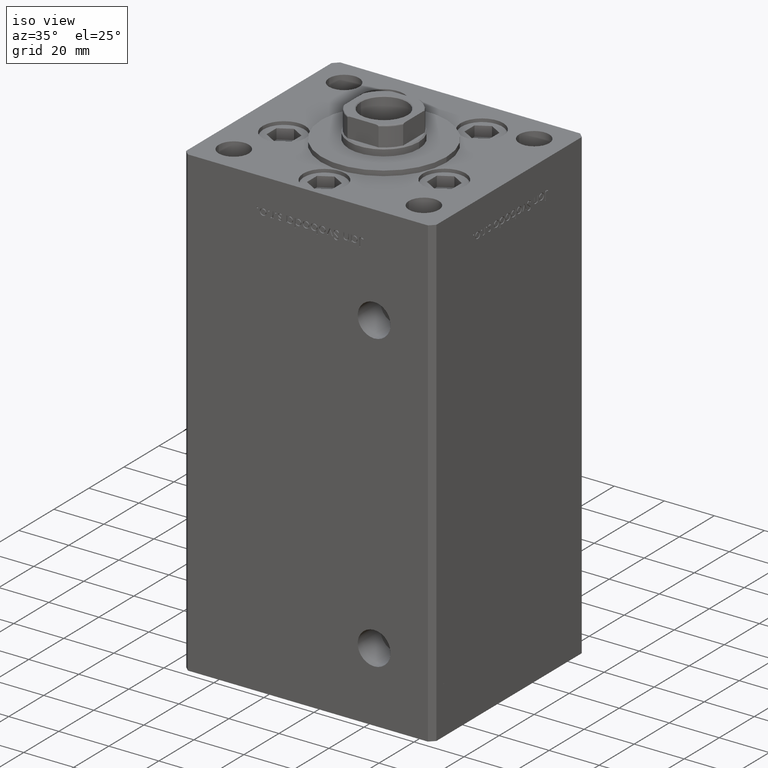
[diagram: clean part render]
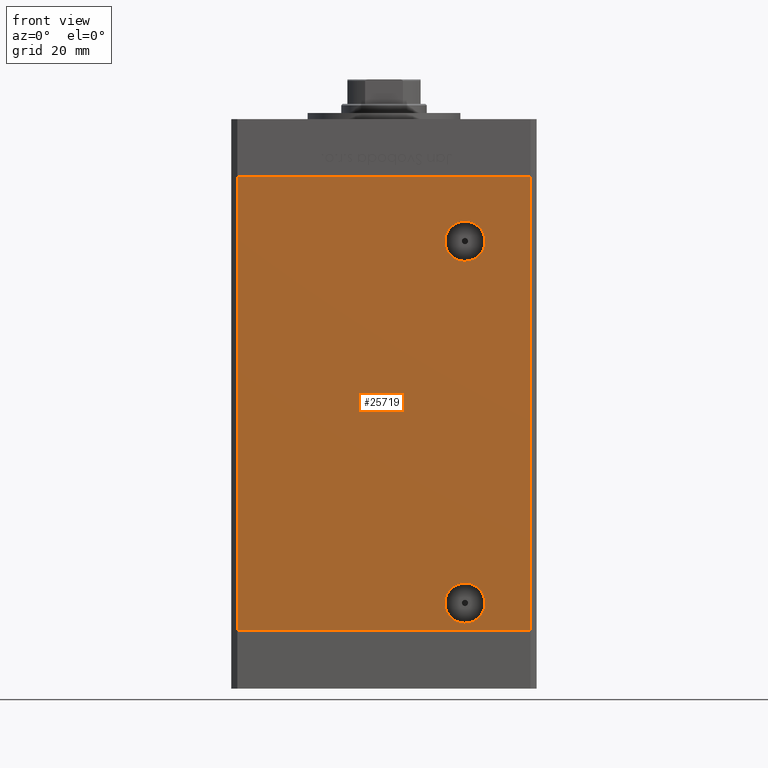
[diagram: tour spotlight — one face highlighted and labeled with its STEP entity id]
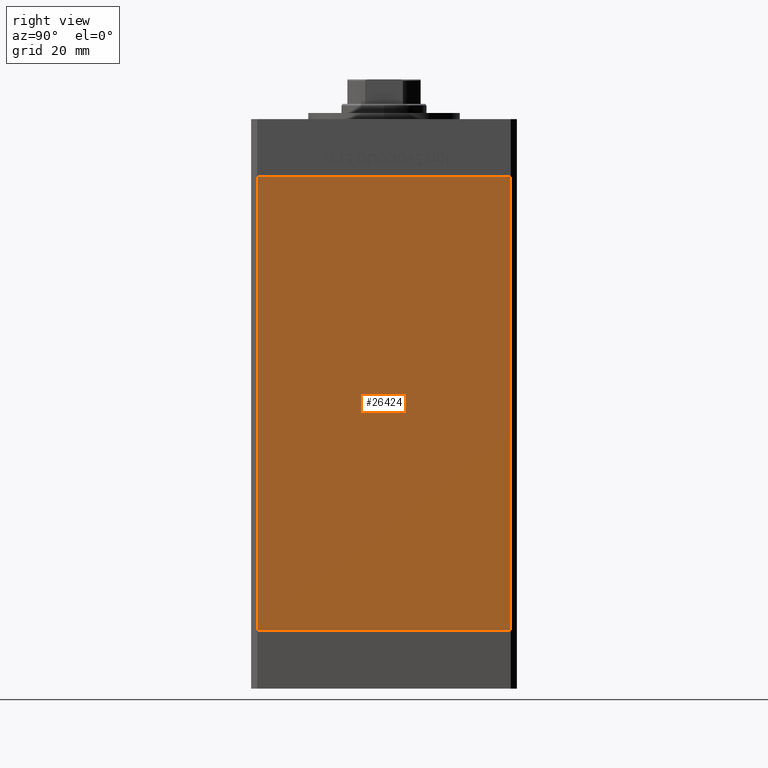
[diagram: tour spotlight — one face highlighted and labeled with its STEP entity id]
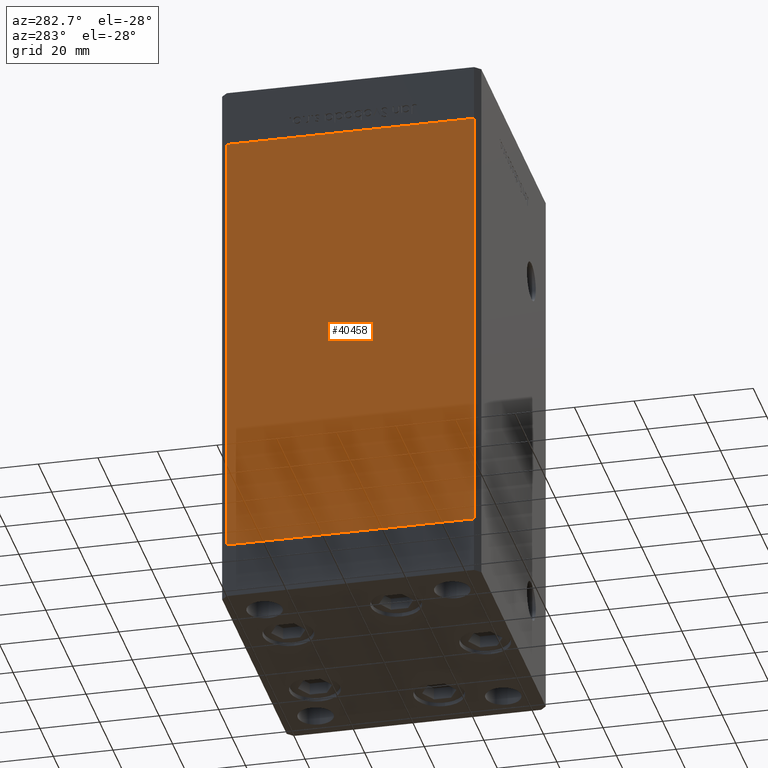
[diagram: tour spotlight — one face highlighted and labeled with its STEP entity id]
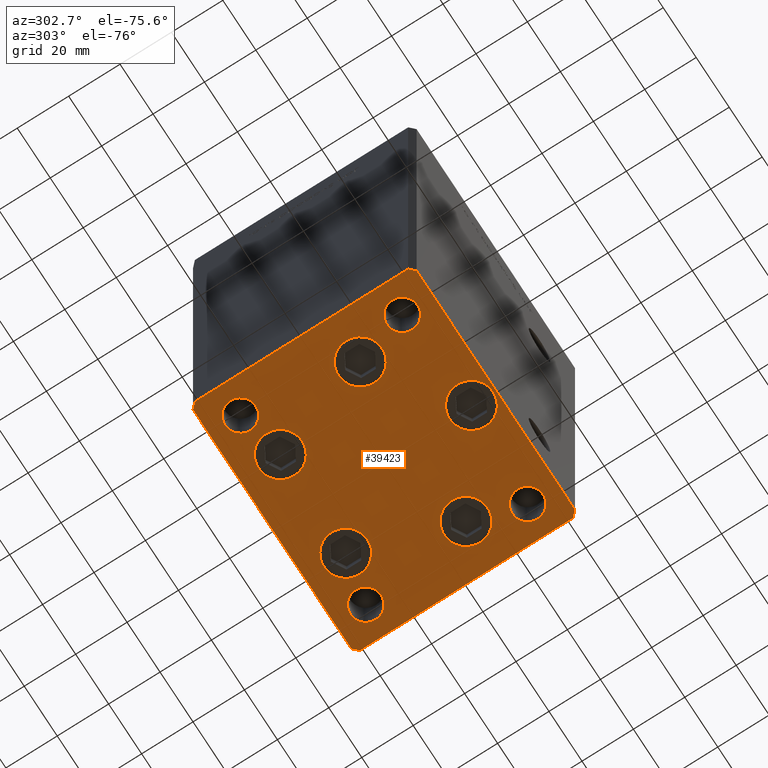
[diagram: tour spotlight — one face highlighted and labeled with its STEP entity id]
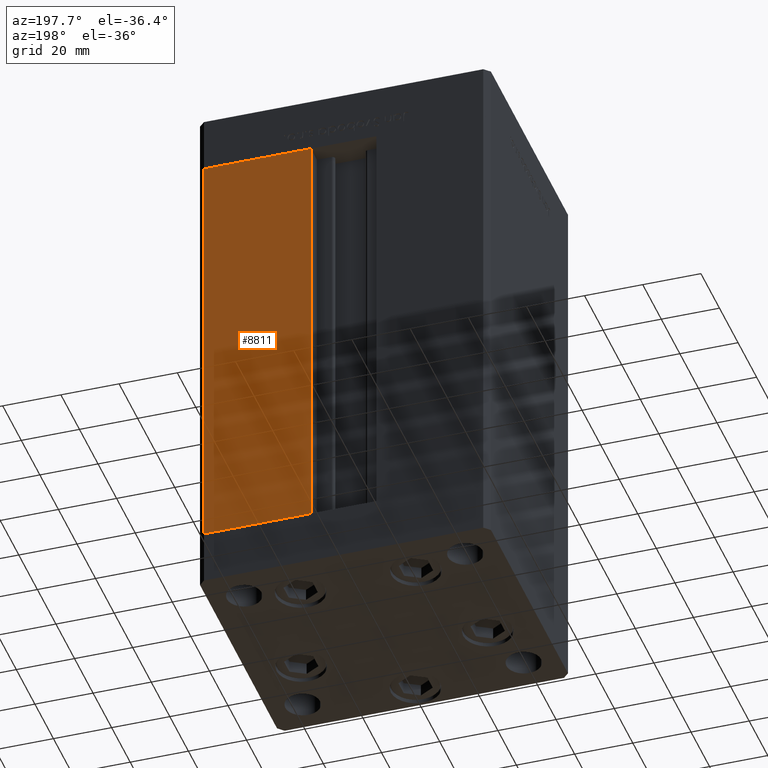
[diagram: tour spotlight — one face highlighted and labeled with its STEP entity id]
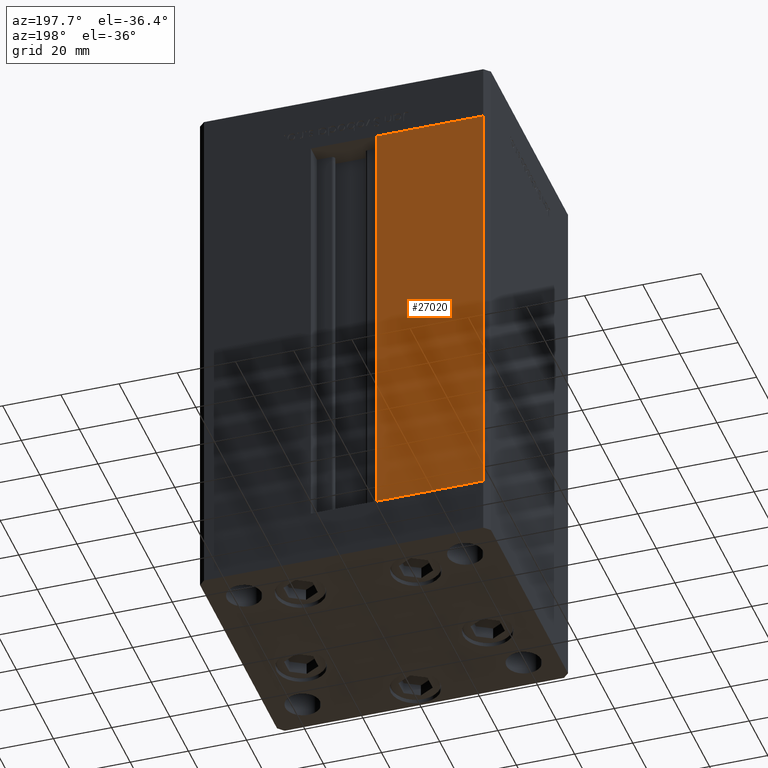
[diagram: tour spotlight — one face highlighted and labeled with its STEP entity id]
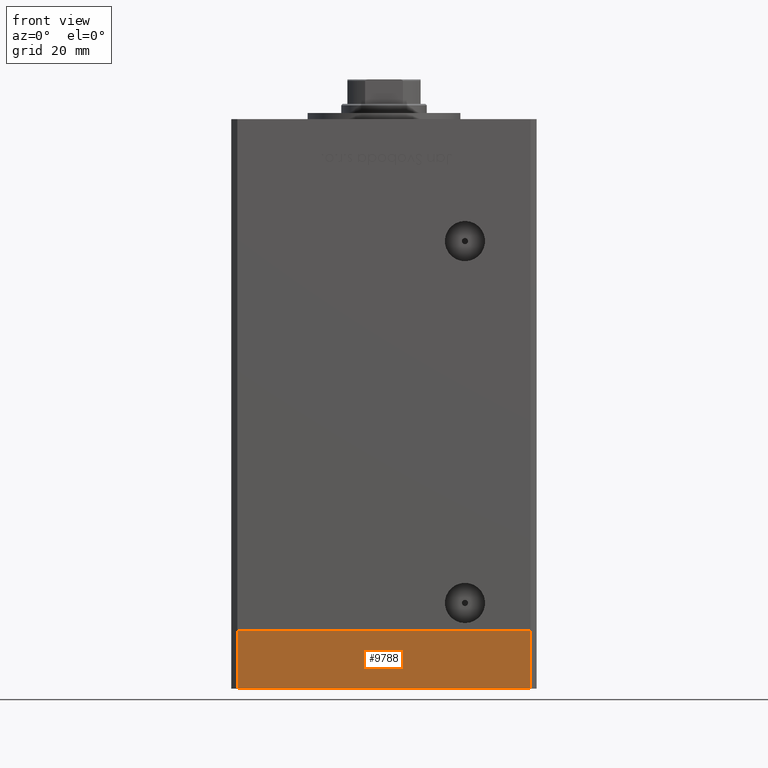
[diagram: tour spotlight — one face highlighted and labeled with its STEP entity id]
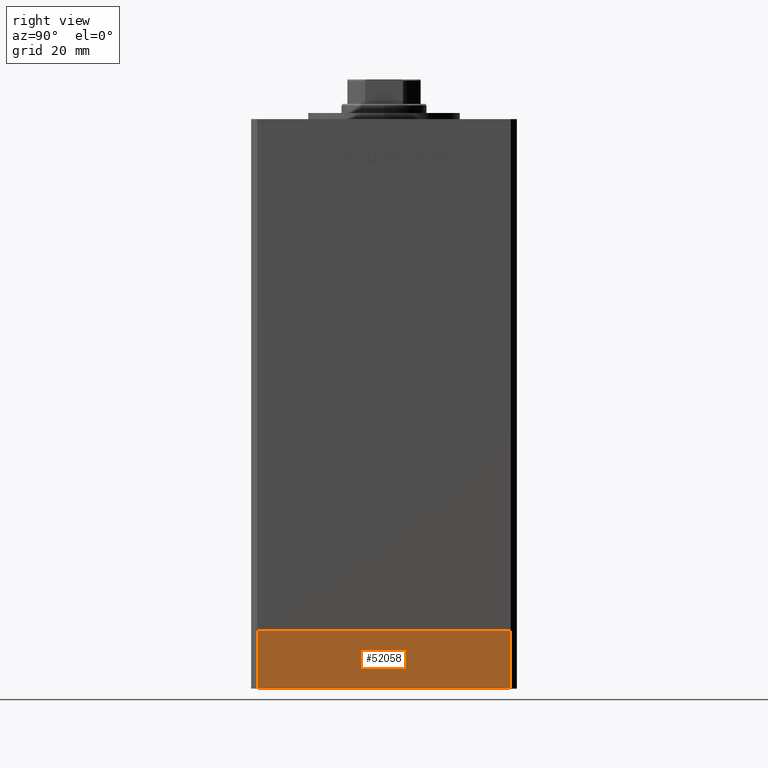
[diagram: tour spotlight — one face highlighted and labeled with its STEP entity id]
A machine part: a face-by-face anatomy tour. The part has 1185 B-rep faces; the first image is the clean iso view, then the 8 largest visible faces are spotlighted one at a time (largest first), each with its STEP entity span.

Face 1 — front view, entity #25719. In plain terms, the highlighted planar face has unit normal (0, 1, 0).
Definition (entity closure, byte-faithful):
#441 = EDGE_CURVE ( 'NONE', #3525, #4405, #39963, .T. ) ;
#507 = CARTESIAN_POINT ( 'NONE',  ( 26.49999999999997513, -43.50000000000000000, 127.5000000000000000 ) ) ;
#566 = VERTEX_POINT ( 'NONE', #28874 ) ;
#873 = PLANE ( 'NONE',  #25583 ) ;
#1144 = CARTESIAN_POINT ( 'NONE',  ( 26.49999999999998934, -43.50000000000000000, 15.58000000000000362 ) ) ;
#3329 = EDGE_CURVE ( 'NONE', #8546, #22762, #11626, .T. ) ;
#3525 = VERTEX_POINT ( 'NONE', #23102 ) ;
#4049 = FACE_BOUND ( 'NONE', #42426, .T. ) ;
#4232 = CARTESIAN_POINT ( 'NONE',  ( -47.99999999999998579, -43.50000000000000000, 148.5000000000000000 ) ) ;
#4405 = VERTEX_POINT ( 'NONE', #18109 ) ;
#4934 = EDGE_CURVE ( 'NONE', #566, #4405, #50350, .T. ) ;
#5079 = FACE_BOUND ( 'NONE', #31125, .T. ) ;
#5959 = EDGE_CURVE ( 'NONE', #37510, #3525, #46673, .T. ) ;
#7356 = DIRECTION ( 'NONE',  ( 0.000000000000000000, -1.000000000000000000, 0.000000000000000000 ) ) ;
#8546 = VERTEX_POINT ( 'NONE', #30614 ) ;
#9357 = CIRCLE ( 'NONE', #27066, 6.579999999999988525 ) ;
#9588 = LINE ( 'NONE', #9847, #23851 ) ;
#9847 = CARTESIAN_POINT ( 'NONE',  ( -47.99999999999998579, -43.50000000000000000, 148.5000000000000000 ) ) ;
#10025 = VERTEX_POINT ( 'NONE', #35699 ) ;
#11626 = CIRCLE ( 'NONE', #31043, 6.579999999999994742 ) ;
#11669 = VECTOR ( 'NONE', #26339, 1000.000000000000000 ) ;
#12106 = EDGE_LOOP ( 'NONE', ( #40223, #30153, #46332, #20754 ) ) ;
#12555 = EDGE_CURVE ( 'NONE', #15434, #10025, #9357, .T. ) ;
#12891 = DIRECTION ( 'NONE',  ( 0.000000000000000000, 0.000000000000000000, -1.000000000000000000 ) ) ;
#14107 = EDGE_CURVE ( 'NONE', #37510, #566, #9588, .T. ) ;
#15434 = VERTEX_POINT ( 'NONE', #44928 ) ;
#16184 = DIRECTION ( 'NONE',  ( 0.000000000000000000, 1.000000000000000000, 0.000000000000000000 ) ) ;
#18109 = CARTESIAN_POINT ( 'NONE',  ( 47.99999999999998579, -43.50000000000000000, 0.000000000000000000 ) ) ;
#18183 = DIRECTION ( 'NONE',  ( -0.000000000000000000, -0.000000000000000000, -1.000000000000000000 ) ) ;
#18519 = ORIENTED_EDGE ( 'NONE', *, *, #12555, .T. ) ;
#19383 = DIRECTION ( 'NONE',  ( 1.000000000000000000, 0.000000000000000000, 0.000000000000000000 ) ) ;
#20508 = DIRECTION ( 'NONE',  ( 0.000000000000000000, 0.000000000000000000, -1.000000000000000000 ) ) ;
#20656 = FACE_OUTER_BOUND ( 'NONE', #12106, .T. ) ;
#20754 = ORIENTED_EDGE ( 'NONE', *, *, #5959, .T. ) ;
#22762 = VERTEX_POINT ( 'NONE', #1144 ) ;
#23102 = CARTESIAN_POINT ( 'NONE',  ( -47.99999999999998579, -43.50000000000000000, 0.000000000000000000 ) ) ;
#23461 = DIRECTION ( 'NONE',  ( 0.000000000000000000, 0.000000000000000000, -1.000000000000000000 ) ) ;
#23851 = VECTOR ( 'NONE', #38616, 1000.000000000000000 ) ;
#24371 = VECTOR ( 'NONE', #18183, 1000.000000000000000 ) ;
#24885 = ORIENTED_EDGE ( 'NONE', *, *, #48937, .F. ) ;
#25583 = AXIS2_PLACEMENT_3D ( 'NONE', #48368, #16184, #49143 ) ;
#25719 = ADVANCED_FACE ( 'NONE', ( #4049, #20656, #5079 ), #873, .F. ) ;
#26339 = DIRECTION ( 'NONE',  ( -0.000000000000000000, -0.000000000000000000, -1.000000000000000000 ) ) ;
#27066 = AXIS2_PLACEMENT_3D ( 'NONE', #507, #49043, #12891 ) ;
#27301 = CARTESIAN_POINT ( 'NONE',  ( -47.99999999999998579, -43.50000000000000000, 0.000000000000000000 ) ) ;
#27735 = CIRCLE ( 'NONE', #33628, 6.579999999999988525 ) ;
#28874 = CARTESIAN_POINT ( 'NONE',  ( 47.99999999999998579, -43.50000000000000000, 148.5000000000000000 ) ) ;
#30153 = ORIENTED_EDGE ( 'NONE', *, *, #4934, .F. ) ;
#30428 = CARTESIAN_POINT ( 'NONE',  ( 26.49999999999997513, -43.50000000000000000, 127.5000000000000000 ) ) ;
#30614 = CARTESIAN_POINT ( 'NONE',  ( 26.49999999999998934, -43.50000000000000000, 2.420000000000013252 ) ) ;
#31043 = AXIS2_PLACEMENT_3D ( 'NONE', #43522, #7356, #23461 ) ;
#31125 = EDGE_LOOP ( 'NONE', ( #18519, #37310 ) ) ;
#33628 = AXIS2_PLACEMENT_3D ( 'NONE', #30428, #38601, #46517 ) ;
#35354 = CIRCLE ( 'NONE', #48835, 6.579999999999994742 ) ;
#35699 = CARTESIAN_POINT ( 'NONE',  ( 26.49999999999997513, -43.50000000000000000, 134.0800000000000125 ) ) ;
#36036 = VECTOR ( 'NONE', #19383, 1000.000000000000000 ) ;
#37310 = ORIENTED_EDGE ( 'NONE', *, *, #47474, .T. ) ;
#37510 = VERTEX_POINT ( 'NONE', #4232 ) ;
#38493 = CARTESIAN_POINT ( 'NONE',  ( 47.99999999999998579, -43.50000000000000000, 148.5000000000000000 ) ) ;
#38601 = DIRECTION ( 'NONE',  ( -0.000000000000000000, 1.000000000000000000, -0.000000000000000000 ) ) ;
#38616 = DIRECTION ( 'NONE',  ( 1.000000000000000000, 0.000000000000000000, 0.000000000000000000 ) ) ;
#39963 = LINE ( 'NONE', #27301, #36036 ) ;
#40223 = ORIENTED_EDGE ( 'NONE', *, *, #441, .T. ) ;
#42426 = EDGE_LOOP ( 'NONE', ( #51772, #24885 ) ) ;
#42455 = CARTESIAN_POINT ( 'NONE',  ( -47.99999999999998579, -43.50000000000000000, 148.5000000000000000 ) ) ;
#43522 = CARTESIAN_POINT ( 'NONE',  ( 26.49999999999998934, -43.50000000000000000, 9.000000000000007105 ) ) ;
#44928 = CARTESIAN_POINT ( 'NONE',  ( 26.49999999999997513, -43.50000000000000000, 120.9200000000000159 ) ) ;
#46332 = ORIENTED_EDGE ( 'NONE', *, *, #14107, .F. ) ;
#46517 = DIRECTION ( 'NONE',  ( 0.000000000000000000, 0.000000000000000000, -1.000000000000000000 ) ) ;
#46673 = LINE ( 'NONE', #42455, #24371 ) ;
#47474 = EDGE_CURVE ( 'NONE', #10025, #15434, #27735, .T. ) ;
#47682 = DIRECTION ( 'NONE',  ( 0.000000000000000000, -1.000000000000000000, 0.000000000000000000 ) ) ;
#48368 = CARTESIAN_POINT ( 'NONE',  ( -47.99999999999998579, -43.50000000000000000, 148.5000000000000000 ) ) ;
#48835 = AXIS2_PLACEMENT_3D ( 'NONE', #51639, #47682, #20508 ) ;
#48937 = EDGE_CURVE ( 'NONE', #22762, #8546, #35354, .T. ) ;
#49043 = DIRECTION ( 'NONE',  ( -0.000000000000000000, 1.000000000000000000, -0.000000000000000000 ) ) ;
#49143 = DIRECTION ( 'NONE',  ( 0.000000000000000000, -0.000000000000000000, 1.000000000000000000 ) ) ;
#50350 = LINE ( 'NONE', #38493, #11669 ) ;
#51639 = CARTESIAN_POINT ( 'NONE',  ( 26.49999999999998934, -43.50000000000000000, 9.000000000000007105 ) ) ;
#51772 = ORIENTED_EDGE ( 'NONE', *, *, #3329, .F. ) ;

Face 2 — right view, entity #26424. In plain terms, the highlighted planar face has unit normal (1, -0, 0).
Definition (entity closure, byte-faithful):
#650 = ORIENTED_EDGE ( 'NONE', *, *, #17857, .T. ) ;
#1398 = EDGE_LOOP ( 'NONE', ( #25860, #24749, #650, #3677 ) ) ;
#1902 = EDGE_CURVE ( 'NONE', #49490, #48179, #51279, .T. ) ;
#3676 = LINE ( 'NONE', #7894, #3981 ) ;
#3677 = ORIENTED_EDGE ( 'NONE', *, *, #1902, .T. ) ;
#3981 = VECTOR ( 'NONE', #19507, 1000.000000000000000 ) ;
#4834 = DIRECTION ( 'NONE',  ( 3.344045254895050480E-16, 1.000000000000000000, 0.000000000000000000 ) ) ;
#5085 = DIRECTION ( 'NONE',  ( 1.000000000000000000, -3.344045254895050480E-16, 0.000000000000000000 ) ) ;
#6940 = VECTOR ( 'NONE', #12837, 1000.000000000000000 ) ;
#7894 = CARTESIAN_POINT ( 'NONE',  ( 50.00000000000001421, 41.49999999999999289, 148.5000000000000000 ) ) ;
#9071 = VECTOR ( 'NONE', #50758, 1000.000000000000000 ) ;
#9295 = CARTESIAN_POINT ( 'NONE',  ( 50.00000000000001421, 41.49999999999999289, 148.5000000000000000 ) ) ;
#12837 = DIRECTION ( 'NONE',  ( -3.344045254895050973E-16, -1.000000000000000000, 0.000000000000000000 ) ) ;
#13706 = VECTOR ( 'NONE', #42839, 1000.000000000000000 ) ;
#14087 = EDGE_CURVE ( 'NONE', #49548, #48179, #34667, .T. ) ;
#17857 = EDGE_CURVE ( 'NONE', #30072, #49490, #29204, .T. ) ;
#19507 = DIRECTION ( 'NONE',  ( -0.000000000000000000, -0.000000000000000000, -1.000000000000000000 ) ) ;
#24749 = ORIENTED_EDGE ( 'NONE', *, *, #35620, .F. ) ;
#24776 = AXIS2_PLACEMENT_3D ( 'NONE', #9295, #5085, #4834 ) ;
#25681 = CARTESIAN_POINT ( 'NONE',  ( 49.99999999999998579, -41.49999999999999289, 0.000000000000000000 ) ) ;
#25860 = ORIENTED_EDGE ( 'NONE', *, *, #14087, .F. ) ;
#25947 = CARTESIAN_POINT ( 'NONE',  ( 50.00000000000001421, 41.49999999999999289, 0.000000000000000000 ) ) ;
#26424 = ADVANCED_FACE ( 'NONE', ( #44696 ), #29362, .T. ) ;
#29204 = LINE ( 'NONE', #41336, #6940 ) ;
#29362 = PLANE ( 'NONE',  #24776 ) ;
#29844 = CARTESIAN_POINT ( 'NONE',  ( 50.00000000000001421, 41.49999999999999289, 148.5000000000000000 ) ) ;
#30072 = VERTEX_POINT ( 'NONE', #29844 ) ;
#34667 = LINE ( 'NONE', #25947, #13706 ) ;
#35620 = EDGE_CURVE ( 'NONE', #30072, #49548, #3676, .T. ) ;
#41336 = CARTESIAN_POINT ( 'NONE',  ( 50.00000000000001421, 41.49999999999999289, 148.5000000000000000 ) ) ;
#42593 = CARTESIAN_POINT ( 'NONE',  ( 49.99999999999998579, -41.49999999999999289, 148.5000000000000000 ) ) ;
#42839 = DIRECTION ( 'NONE',  ( -3.344045254895050973E-16, -1.000000000000000000, 0.000000000000000000 ) ) ;
#43493 = CARTESIAN_POINT ( 'NONE',  ( 49.99999999999998579, -41.49999999999999289, 148.5000000000000000 ) ) ;
#43757 = CARTESIAN_POINT ( 'NONE',  ( 50.00000000000001421, 41.49999999999999289, 0.000000000000000000 ) ) ;
#44696 = FACE_OUTER_BOUND ( 'NONE', #1398, .T. ) ;
#48179 = VERTEX_POINT ( 'NONE', #25681 ) ;
#49490 = VERTEX_POINT ( 'NONE', #43493 ) ;
#49548 = VERTEX_POINT ( 'NONE', #43757 ) ;
#50758 = DIRECTION ( 'NONE',  ( -0.000000000000000000, -0.000000000000000000, -1.000000000000000000 ) ) ;
#51279 = LINE ( 'NONE', #42593, #9071 ) ;

Face 3 — auxiliary view, entity #40458. In plain terms, the highlighted planar face has unit normal (1, 0, 0).
Definition (entity closure, byte-faithful):
#1849 = ORIENTED_EDGE ( 'NONE', *, *, #36717, .F. ) ;
#3092 = EDGE_CURVE ( 'NONE', #48261, #23057, #8474, .T. ) ;
#5285 = CARTESIAN_POINT ( 'NONE',  ( -49.99999999999998579, -41.49999999999999289, 0.000000000000000000 ) ) ;
#6485 = CARTESIAN_POINT ( 'NONE',  ( -50.00000000000001421, 41.49999999999999289, 148.5000000000000000 ) ) ;
#6508 = EDGE_CURVE ( 'NONE', #29056, #23057, #47259, .T. ) ;
#8474 = LINE ( 'NONE', #8726, #47041 ) ;
#8726 = CARTESIAN_POINT ( 'NONE',  ( -49.99999999999998579, -41.49999999999999289, 148.5000000000000000 ) ) ;
#11594 = LINE ( 'NONE', #35896, #44447 ) ;
#14413 = DIRECTION ( 'NONE',  ( -0.000000000000000000, -0.000000000000000000, -1.000000000000000000 ) ) ;
#14801 = DIRECTION ( 'NONE',  ( 3.344045254895050973E-16, -1.000000000000000000, 0.000000000000000000 ) ) ;
#18896 = LINE ( 'NONE', #6485, #41924 ) ;
#20987 = DIRECTION ( 'NONE',  ( 1.000000000000000000, 3.344045254895050480E-16, -0.000000000000000000 ) ) ;
#23015 = CARTESIAN_POINT ( 'NONE',  ( -50.00000000000001421, 41.49999999999999289, 0.000000000000000000 ) ) ;
#23057 = VERTEX_POINT ( 'NONE', #5285 ) ;
#23214 = DIRECTION ( 'NONE',  ( 3.344045254895050973E-16, -1.000000000000000000, 0.000000000000000000 ) ) ;
#24571 = DIRECTION ( 'NONE',  ( -0.000000000000000000, -0.000000000000000000, -1.000000000000000000 ) ) ;
#26415 = PLANE ( 'NONE',  #51117 ) ;
#26622 = ORIENTED_EDGE ( 'NONE', *, *, #6508, .T. ) ;
#29056 = VERTEX_POINT ( 'NONE', #23015 ) ;
#30877 = ORIENTED_EDGE ( 'NONE', *, *, #3092, .F. ) ;
#32010 = CARTESIAN_POINT ( 'NONE',  ( -49.99999999999998579, -41.49999999999999289, 148.5000000000000000 ) ) ;
#34469 = VECTOR ( 'NONE', #14801, 1000.000000000000000 ) ;
#35029 = VERTEX_POINT ( 'NONE', #40276 ) ;
#35896 = CARTESIAN_POINT ( 'NONE',  ( -50.00000000000001421, 41.49999999999999289, 148.5000000000000000 ) ) ;
#36717 = EDGE_CURVE ( 'NONE', #35029, #48261, #11594, .T. ) ;
#37097 = DIRECTION ( 'NONE',  ( -3.344045254895050480E-16, 1.000000000000000000, 0.000000000000000000 ) ) ;
#40276 = CARTESIAN_POINT ( 'NONE',  ( -50.00000000000001421, 41.49999999999999289, 148.5000000000000000 ) ) ;
#40458 = ADVANCED_FACE ( 'NONE', ( #42265 ), #26415, .F. ) ;
#41924 = VECTOR ( 'NONE', #14413, 1000.000000000000000 ) ;
#42264 = CARTESIAN_POINT ( 'NONE',  ( -50.00000000000001421, 41.49999999999999289, 0.000000000000000000 ) ) ;
#42265 = FACE_OUTER_BOUND ( 'NONE', #51162, .T. ) ;
#42886 = EDGE_CURVE ( 'NONE', #35029, #29056, #18896, .T. ) ;
#44447 = VECTOR ( 'NONE', #23214, 1000.000000000000000 ) ;
#46229 = CARTESIAN_POINT ( 'NONE',  ( -50.00000000000001421, 41.49999999999999289, 148.5000000000000000 ) ) ;
#47041 = VECTOR ( 'NONE', #24571, 1000.000000000000000 ) ;
#47259 = LINE ( 'NONE', #42264, #34469 ) ;
#48261 = VERTEX_POINT ( 'NONE', #32010 ) ;
#48549 = ORIENTED_EDGE ( 'NONE', *, *, #42886, .T. ) ;
#51117 = AXIS2_PLACEMENT_3D ( 'NONE', #46229, #20987, #37097 ) ;
#51162 = EDGE_LOOP ( 'NONE', ( #26622, #30877, #1849, #48549 ) ) ;

Face 4 — auxiliary view, entity #39423. In plain terms, the highlighted planar face has unit normal (0, 0, -1).
Definition (entity closure, byte-faithful):
#114 = DIRECTION ( 'NONE',  ( -0.000000000000000000, 0.000000000000000000, 1.000000000000000000 ) ) ;
#298 = AXIS2_PLACEMENT_3D ( 'NONE', #2965, #42826, #6654 ) ;
#493 = ORIENTED_EDGE ( 'NONE', *, *, #47531, .T. ) ;
#867 = AXIS2_PLACEMENT_3D ( 'NONE', #22043, #37892, #10159 ) ;
#1278 = ORIENTED_EDGE ( 'NONE', *, *, #24547, .T. ) ;
#1594 = VERTEX_POINT ( 'NONE', #10449 ) ;
#1672 = EDGE_CURVE ( 'NONE', #33672, #50970, #47828, .T. ) ;
#1776 = LINE ( 'NONE', #33457, #40294 ) ;
#2219 = CARTESIAN_POINT ( 'NONE',  ( 11.32068048781373015, 27.62500000000000000, 0.000000000000000000 ) ) ;
#2519 = LINE ( 'NONE', #33924, #13421 ) ;
#2580 = ORIENTED_EDGE ( 'NONE', *, *, #47209, .T. ) ;
#2735 = EDGE_CURVE ( 'NONE', #14556, #51281, #10794, .T. ) ;
#2817 = ORIENTED_EDGE ( 'NONE', *, *, #24972, .T. ) ;
#2965 = CARTESIAN_POINT ( 'NONE',  ( 38.00000000000000000, 31.49999999999999289, 0.000000000000000000 ) ) ;
#3211 = CIRCLE ( 'NONE', #28502, 5.999999999999998224 ) ;
#3297 = CARTESIAN_POINT ( 'NONE',  ( -50.00000000000000711, 41.49999999999995026, 0.000000000000000000 ) ) ;
#3511 = FACE_BOUND ( 'NONE', #23990, .T. ) ;
#3722 = CARTESIAN_POINT ( 'NONE',  ( 49.99999999999992184, 41.49999999999998579, 0.000000000000000000 ) ) ;
#3874 = CARTESIAN_POINT ( 'NONE',  ( -50.00000000000000711, 41.49999999999995026, 0.000000000000000000 ) ) ;
#4488 = VECTOR ( 'NONE', #43202, 1000.000000000000000 ) ;
#4513 = AXIS2_PLACEMENT_3D ( 'NONE', #31871, #11800, #38983 ) ;
#4650 = EDGE_CURVE ( 'NONE', #50970, #33672, #9139, .T. ) ;
#4706 = CARTESIAN_POINT ( 'NONE',  ( -44.00000000000000000, 31.50000000000000000, 0.000000000000000000 ) ) ;
#5090 = DIRECTION ( 'NONE',  ( 0.000000000000000000, -0.000000000000000000, -1.000000000000000000 ) ) ;
#5270 = DIRECTION ( 'NONE',  ( -0.000000000000000000, 0.000000000000000000, 1.000000000000000000 ) ) ;
#5363 = VERTEX_POINT ( 'NONE', #10185 ) ;
#5787 = ORIENTED_EDGE ( 'NONE', *, *, #35576, .T. ) ;
#5985 = ORIENTED_EDGE ( 'NONE', *, *, #15544, .T. ) ;
#6001 = DIRECTION ( 'NONE',  ( 8.360113137237628665E-17, -1.000000000000000000, 0.000000000000000000 ) ) ;
#6481 = EDGE_CURVE ( 'NONE', #30811, #44125, #45450, .T. ) ;
#6654 = DIRECTION ( 'NONE',  ( 1.000000000000000000, 0.000000000000000000, 0.000000000000000000 ) ) ;
#7017 = AXIS2_PLACEMENT_3D ( 'NONE', #42306, #45496, #22244 ) ;
#7273 = CARTESIAN_POINT ( 'NONE',  ( -50.00000000000000000, -41.50000000000000000, 0.000000000000000000 ) ) ;
#7464 = FACE_OUTER_BOUND ( 'NONE', #49301, .T. ) ;
#7477 = ORIENTED_EDGE ( 'NONE', *, *, #39239, .T. ) ;
#8002 = VERTEX_POINT ( 'NONE', #28985 ) ;
#8872 = EDGE_CURVE ( 'NONE', #34899, #42679, #33707, .T. ) ;
#9139 = CIRCLE ( 'NONE', #43700, 8.500000000000000000 ) ;
#9198 = AXIS2_PLACEMENT_3D ( 'NONE', #43341, #11660, #27764 ) ;
#9537 = CIRCLE ( 'NONE', #34000, 8.500000000000000000 ) ;
#9954 = DIRECTION ( 'NONE',  ( 1.000000000000000000, 0.000000000000000000, 0.000000000000000000 ) ) ;
#10159 = DIRECTION ( 'NONE',  ( 1.000000000000000000, 0.000000000000000000, 0.000000000000000000 ) ) ;
#10185 = CARTESIAN_POINT ( 'NONE',  ( -40.55550741379015278, -11.33333333333333925, 0.000000000000000000 ) ) ;
#10255 = DIRECTION ( 'NONE',  ( 0.000000000000000000, -0.000000000000000000, -1.000000000000000000 ) ) ;
#10449 = CARTESIAN_POINT ( 'NONE',  ( 50.00000000000000000, -41.49999999999999289, 0.000000000000000000 ) ) ;
#10538 = DIRECTION ( 'NONE',  ( 0.000000000000000000, -0.000000000000000000, -1.000000000000000000 ) ) ;
#10672 = ORIENTED_EDGE ( 'NONE', *, *, #6481, .T. ) ;
#10794 = CIRCLE ( 'NONE', #18372, 5.999999999999998224 ) ;
#11064 = CARTESIAN_POINT ( 'NONE',  ( 32.05550741379015278, -11.33333333333333037, 0.000000000000000000 ) ) ;
#11609 = VECTOR ( 'NONE', #14724, 1000.000000000000114 ) ;
#11660 = DIRECTION ( 'NONE',  ( 0.000000000000000000, -0.000000000000000000, -1.000000000000000000 ) ) ;
#11685 = DIRECTION ( 'NONE',  ( 1.000000000000000000, 0.000000000000000000, 0.000000000000000000 ) ) ;
#11800 = DIRECTION ( 'NONE',  ( 0.000000000000000000, -0.000000000000000000, -1.000000000000000000 ) ) ;
#12092 = LINE ( 'NONE', #52204, #36088 ) ;
#12276 = CARTESIAN_POINT ( 'NONE',  ( 49.99999999999992184, 41.49999999999998579, 0.000000000000000000 ) ) ;
#12726 = CARTESIAN_POINT ( 'NONE',  ( -32.05550741379015278, -11.33333333333333925, 0.000000000000000000 ) ) ;
#13421 = VECTOR ( 'NONE', #14387, 1000.000000000000000 ) ;
#14387 = DIRECTION ( 'NONE',  ( -1.003213576468515193E-15, 1.000000000000000000, 0.000000000000000000 ) ) ;
#14556 = VERTEX_POINT ( 'NONE', #26145 ) ;
#14724 = DIRECTION ( 'NONE',  ( -0.7071067811865474617, 0.7071067811865474617, 0.000000000000000000 ) ) ;
#15072 = CIRCLE ( 'NONE', #9198, 8.500000000000000000 ) ;
#15381 = CARTESIAN_POINT ( 'NONE',  ( 0.000000000000000000, 0.000000000000000000, 0.000000000000000000 ) ) ;
#15481 = ORIENTED_EDGE ( 'NONE', *, *, #46737, .F. ) ;
#15544 = EDGE_CURVE ( 'NONE', #5363, #21880, #19498, .T. ) ;
#15722 = DIRECTION ( 'NONE',  ( 0.7071067811865474617, -0.7071067811865474617, 0.000000000000000000 ) ) ;
#15755 = DIRECTION ( 'NONE',  ( 1.000000000000000000, 0.000000000000000000, 0.000000000000000000 ) ) ;
#15920 = FACE_BOUND ( 'NONE', #40094, .T. ) ;
#16000 = CARTESIAN_POINT ( 'NONE',  ( 19.82068048781373193, 27.62500000000000000, 0.000000000000000000 ) ) ;
#16029 = CARTESIAN_POINT ( 'NONE',  ( -19.82068048781373903, 27.62499999999999645, 0.000000000000000000 ) ) ;
#16141 = VERTEX_POINT ( 'NONE', #29996 ) ;
#16161 = CARTESIAN_POINT ( 'NONE',  ( 4.163799117101000559E-15, -34.00000000000000000, 0.000000000000000000 ) ) ;
#16229 = EDGE_CURVE ( 'NONE', #44445, #30811, #35267, .T. ) ;
#16306 = CIRCLE ( 'NONE', #7017, 8.500000000000000000 ) ;
#16425 = DIRECTION ( 'NONE',  ( 0.000000000000000000, -0.000000000000000000, -1.000000000000000000 ) ) ;
#16464 = DIRECTION ( 'NONE',  ( 1.000000000000000000, 0.000000000000000000, 0.000000000000000000 ) ) ;
#16470 = CARTESIAN_POINT ( 'NONE',  ( 38.00000000000000000, 31.49999999999999289, 0.000000000000000000 ) ) ;
#17125 = VERTEX_POINT ( 'NONE', #3874 ) ;
#17278 = AXIS2_PLACEMENT_3D ( 'NONE', #16161, #16425, #43877 ) ;
#17324 = AXIS2_PLACEMENT_3D ( 'NONE', #22669, #10255, #18964 ) ;
#17326 = CARTESIAN_POINT ( 'NONE',  ( -23.55550741379015278, -11.33333333333333748, 0.000000000000000000 ) ) ;
#17889 = LINE ( 'NONE', #3297, #33438 ) ;
#18061 = ORIENTED_EDGE ( 'NONE', *, *, #43735, .F. ) ;
#18242 = CARTESIAN_POINT ( 'NONE',  ( -28.32068048781373903, 27.62499999999999645, 0.000000000000000000 ) ) ;
#18372 = AXIS2_PLACEMENT_3D ( 'NONE', #24632, #28333, #16464 ) ;
#18556 = ORIENTED_EDGE ( 'NONE', *, *, #4650, .T. ) ;
#18964 = DIRECTION ( 'NONE',  ( 1.000000000000000000, 0.000000000000000000, 0.000000000000000000 ) ) ;
#19498 = CIRCLE ( 'NONE', #36400, 8.500000000000000000 ) ;
#19763 = EDGE_CURVE ( 'NONE', #8002, #17125, #47663, .T. ) ;
#19965 = ORIENTED_EDGE ( 'NONE', *, *, #30006, .T. ) ;
#20467 = DIRECTION ( 'NONE',  ( 0.000000000000000000, -0.000000000000000000, -1.000000000000000000 ) ) ;
#20917 = CIRCLE ( 'NONE', #50397, 6.000000000000005329 ) ;
#21053 = DIRECTION ( 'NONE',  ( -1.000000000000000000, -3.614007241618350743E-16, 0.000000000000000000 ) ) ;
#21076 = CARTESIAN_POINT ( 'NONE',  ( -11.32068048781373726, 27.62499999999999645, 0.000000000000000000 ) ) ;
#21162 = DIRECTION ( 'NONE',  ( 0.000000000000000000, -0.000000000000000000, -1.000000000000000000 ) ) ;
#21260 = EDGE_CURVE ( 'NONE', #28792, #34099, #22199, .T. ) ;
#21364 = DIRECTION ( 'NONE',  ( 1.000000000000000000, 0.000000000000000000, 0.000000000000000000 ) ) ;
#21564 = VERTEX_POINT ( 'NONE', #27965 ) ;
#21638 = ORIENTED_EDGE ( 'NONE', *, *, #21260, .F. ) ;
#21880 = VERTEX_POINT ( 'NONE', #17326 ) ;
#22043 = CARTESIAN_POINT ( 'NONE',  ( 32.05550741379015278, -11.33333333333333037, 0.000000000000000000 ) ) ;
#22161 = ORIENTED_EDGE ( 'NONE', *, *, #23466, .T. ) ;
#22199 = CIRCLE ( 'NONE', #298, 5.999999999999998224 ) ;
#22244 = DIRECTION ( 'NONE',  ( 1.000000000000000000, 0.000000000000000000, 0.000000000000000000 ) ) ;
#22669 = CARTESIAN_POINT ( 'NONE',  ( 38.00000000000000000, -31.49999999999999289, 0.000000000000000000 ) ) ;
#23038 = CARTESIAN_POINT ( 'NONE',  ( -47.99999999999999289, -43.50000000000001421, 0.000000000000000000 ) ) ;
#23044 = FACE_BOUND ( 'NONE', #36478, .T. ) ;
#23240 = CARTESIAN_POINT ( 'NONE',  ( 23.55550741379015633, -11.33333333333333037, 0.000000000000000000 ) ) ;
#23466 = EDGE_CURVE ( 'NONE', #21880, #5363, #27211, .T. ) ;
#23990 = EDGE_LOOP ( 'NONE', ( #493, #19965 ) ) ;
#24085 = EDGE_CURVE ( 'NONE', #45051, #16141, #29738, .T. ) ;
#24547 = EDGE_CURVE ( 'NONE', #46116, #39635, #9537, .T. ) ;
#24549 = EDGE_CURVE ( 'NONE', #25982, #21564, #24736, .T. ) ;
#24632 = CARTESIAN_POINT ( 'NONE',  ( -38.00000000000000000, 31.50000000000000000, 0.000000000000000000 ) ) ;
#24736 = CIRCLE ( 'NONE', #4513, 5.999999999999998224 ) ;
#24972 = EDGE_CURVE ( 'NONE', #39635, #46116, #16306, .T. ) ;
#25029 = AXIS2_PLACEMENT_3D ( 'NONE', #15381, #27520, #11685 ) ;
#25099 = CARTESIAN_POINT ( 'NONE',  ( 47.99999999999990763, 43.50000000000000000, 0.000000000000000000 ) ) ;
#25227 = ORIENTED_EDGE ( 'NONE', *, *, #24085, .T. ) ;
#25330 = CARTESIAN_POINT ( 'NONE',  ( -38.00000000000000000, 31.50000000000000000, 0.000000000000000000 ) ) ;
#25730 = CARTESIAN_POINT ( 'NONE',  ( 44.00000000000000000, 31.49999999999999289, 0.000000000000000000 ) ) ;
#25784 = ORIENTED_EDGE ( 'NONE', *, *, #35811, .T. ) ;
#25982 = VERTEX_POINT ( 'NONE', #46741 ) ;
#26145 = CARTESIAN_POINT ( 'NONE',  ( -32.00000000000000000, 31.50000000000000000, 0.000000000000000000 ) ) ;
#26292 = ORIENTED_EDGE ( 'NONE', *, *, #1672, .T. ) ;
#27211 = CIRCLE ( 'NONE', #37330, 8.500000000000000000 ) ;
#27354 = CARTESIAN_POINT ( 'NONE',  ( -48.00000000000000711, 43.49999999999996447, 0.000000000000000000 ) ) ;
#27520 = DIRECTION ( 'NONE',  ( -0.000000000000000000, 0.000000000000000000, 1.000000000000000000 ) ) ;
#27764 = DIRECTION ( 'NONE',  ( 1.000000000000000000, 0.000000000000000000, 0.000000000000000000 ) ) ;
#27965 = CARTESIAN_POINT ( 'NONE',  ( 32.00000000000000000, -31.49999999999999289, 0.000000000000000000 ) ) ;
#28050 = FACE_BOUND ( 'NONE', #49350, .T. ) ;
#28333 = DIRECTION ( 'NONE',  ( -0.000000000000000000, 0.000000000000000000, 1.000000000000000000 ) ) ;
#28339 = DIRECTION ( 'NONE',  ( 1.000000000000000000, 0.000000000000000000, 0.000000000000000000 ) ) ;
#28502 = AXIS2_PLACEMENT_3D ( 'NONE', #25330, #5270, #21364 ) ;
#28655 = DIRECTION ( 'NONE',  ( 1.000000000000000000, 0.000000000000000000, 0.000000000000000000 ) ) ;
#28661 = ORIENTED_EDGE ( 'NONE', *, *, #2735, .F. ) ;
#28792 = VERTEX_POINT ( 'NONE', #25730 ) ;
#28832 = DIRECTION ( 'NONE',  ( 1.000000000000000000, 0.000000000000000000, 0.000000000000000000 ) ) ;
#28985 = CARTESIAN_POINT ( 'NONE',  ( -48.00000000000000711, 43.49999999999996447, 0.000000000000000000 ) ) ;
#29232 = VERTEX_POINT ( 'NONE', #25099 ) ;
#29510 = DIRECTION ( 'NONE',  ( 0.000000000000000000, -0.000000000000000000, -1.000000000000000000 ) ) ;
#29704 = VERTEX_POINT ( 'NONE', #46646 ) ;
#29738 = CIRCLE ( 'NONE', #43228, 6.000000000000005329 ) ;
#29996 = CARTESIAN_POINT ( 'NONE',  ( -31.99999999999998579, -31.50000000000000000, 0.000000000000000000 ) ) ;
#30006 = EDGE_CURVE ( 'NONE', #29704, #51287, #41721, .T. ) ;
#30101 = ORIENTED_EDGE ( 'NONE', *, *, #8872, .T. ) ;
#30559 = ORIENTED_EDGE ( 'NONE', *, *, #24549, .T. ) ;
#30811 = VERTEX_POINT ( 'NONE', #23038 ) ;
#30914 = DIRECTION ( 'NONE',  ( 1.000000000000000000, 0.000000000000000000, 0.000000000000000000 ) ) ;
#30986 = CARTESIAN_POINT ( 'NONE',  ( 28.32068048781373193, 27.62500000000000000, 0.000000000000000000 ) ) ;
#31497 = FACE_BOUND ( 'NONE', #48264, .T. ) ;
#31578 = ORIENTED_EDGE ( 'NONE', *, *, #19763, .T. ) ;
#31791 = CIRCLE ( 'NONE', #41859, 8.499999999999992895 ) ;
#31871 = CARTESIAN_POINT ( 'NONE',  ( 38.00000000000000000, -31.49999999999999289, 0.000000000000000000 ) ) ;
#31957 = VECTOR ( 'NONE', #30914, 1000.000000000000000 ) ;
#32630 = ORIENTED_EDGE ( 'NONE', *, *, #44269, .T. ) ;
#33438 = VECTOR ( 'NONE', #6001, 1000.000000000000000 ) ;
#33457 = CARTESIAN_POINT ( 'NONE',  ( 47.99999999999990763, 43.50000000000000000, 0.000000000000000000 ) ) ;
#33592 = DIRECTION ( 'NONE',  ( 1.000000000000000000, 0.000000000000000000, 0.000000000000000000 ) ) ;
#33672 = VERTEX_POINT ( 'NONE', #2219 ) ;
#33707 = CIRCLE ( 'NONE', #867, 8.499999999999992895 ) ;
#33924 = CARTESIAN_POINT ( 'NONE',  ( 50.00000000000000000, -41.49999999999999289, 0.000000000000000000 ) ) ;
#34000 = AXIS2_PLACEMENT_3D ( 'NONE', #16029, #39768, #15755 ) ;
#34099 = VERTEX_POINT ( 'NONE', #45069 ) ;
#34243 = CARTESIAN_POINT ( 'NONE',  ( -32.05550741379015278, -11.33333333333333925, 0.000000000000000000 ) ) ;
#34899 = VERTEX_POINT ( 'NONE', #38254 ) ;
#35190 = FACE_BOUND ( 'NONE', #36465, .T. ) ;
#35267 = LINE ( 'NONE', #7273, #42322 ) ;
#35358 = DIRECTION ( 'NONE',  ( 0.000000000000000000, -0.000000000000000000, -1.000000000000000000 ) ) ;
#35452 = FACE_BOUND ( 'NONE', #38260, .T. ) ;
#35576 = EDGE_CURVE ( 'NONE', #42679, #34899, #31791, .T. ) ;
#35811 = EDGE_CURVE ( 'NONE', #17125, #44445, #17889, .T. ) ;
#36088 = VECTOR ( 'NONE', #36127, 1000.000000000000000 ) ;
#36127 = DIRECTION ( 'NONE',  ( 0.7071067811865463515, 0.7071067811865487940, 0.000000000000000000 ) ) ;
#36400 = AXIS2_PLACEMENT_3D ( 'NONE', #12726, #21162, #28832 ) ;
#36465 = EDGE_LOOP ( 'NONE', ( #2817, #1278 ) ) ;
#36478 = EDGE_LOOP ( 'NONE', ( #21638, #15481 ) ) ;
#36895 = AXIS2_PLACEMENT_3D ( 'NONE', #16000, #20467, #28655 ) ;
#37017 = DIRECTION ( 'NONE',  ( 1.000000000000000000, 0.000000000000000000, 0.000000000000000000 ) ) ;
#37171 = CARTESIAN_POINT ( 'NONE',  ( -44.00000000000000000, -31.50000000000000000, 0.000000000000000000 ) ) ;
#37330 = AXIS2_PLACEMENT_3D ( 'NONE', #34243, #29510, #9954 ) ;
#37892 = DIRECTION ( 'NONE',  ( 0.000000000000000000, -0.000000000000000000, -1.000000000000000000 ) ) ;
#38244 = CARTESIAN_POINT ( 'NONE',  ( 47.99999999999999289, -43.50000000000001421, 0.000000000000000000 ) ) ;
#38254 = CARTESIAN_POINT ( 'NONE',  ( 40.55550741379014568, -11.33333333333332860, 0.000000000000000000 ) ) ;
#38260 = EDGE_LOOP ( 'NONE', ( #5787, #30101 ) ) ;
#38456 = EDGE_LOOP ( 'NONE', ( #28661, #18061 ) ) ;
#38983 = DIRECTION ( 'NONE',  ( 1.000000000000000000, 0.000000000000000000, 0.000000000000000000 ) ) ;
#39143 = PLANE ( 'NONE',  #25029 ) ;
#39239 = EDGE_CURVE ( 'NONE', #43473, #29232, #50866, .T. ) ;
#39423 = ADVANCED_FACE ( 'NONE', ( #35190, #15920, #35452, #3511, #28050, #23044, #31497, #47058, #7464, #44155 ), #39143, .T. ) ;
#39527 = AXIS2_PLACEMENT_3D ( 'NONE', #16470, #114, #28339 ) ;
#39635 = VERTEX_POINT ( 'NONE', #18242 ) ;
#39768 = DIRECTION ( 'NONE',  ( 0.000000000000000000, -0.000000000000000000, -1.000000000000000000 ) ) ;
#40094 = EDGE_LOOP ( 'NONE', ( #26292, #18556 ) ) ;
#40294 = VECTOR ( 'NONE', #21053, 1000.000000000000000 ) ;
#40898 = CIRCLE ( 'NONE', #17324, 5.999999999999998224 ) ;
#40984 = CARTESIAN_POINT ( 'NONE',  ( -37.99999999999999289, -31.50000000000000000, 0.000000000000000000 ) ) ;
#41373 = CARTESIAN_POINT ( 'NONE',  ( -8.499999999999996447, -34.00000000000000000, 0.000000000000000000 ) ) ;
#41712 = EDGE_LOOP ( 'NONE', ( #46371, #25227 ) ) ;
#41721 = CIRCLE ( 'NONE', #17278, 8.500000000000000000 ) ;
#41859 = AXIS2_PLACEMENT_3D ( 'NONE', #11064, #35358, #47470 ) ;
#42053 = CIRCLE ( 'NONE', #39527, 5.999999999999998224 ) ;
#42306 = CARTESIAN_POINT ( 'NONE',  ( -19.82068048781373903, 27.62499999999999645, 0.000000000000000000 ) ) ;
#42322 = VECTOR ( 'NONE', #15722, 1000.000000000000114 ) ;
#42489 = DIRECTION ( 'NONE',  ( 1.000000000000000000, 0.000000000000000000, 0.000000000000000000 ) ) ;
#42679 = VERTEX_POINT ( 'NONE', #23240 ) ;
#42789 = CARTESIAN_POINT ( 'NONE',  ( -47.99999999999999289, -43.50000000000001421, 0.000000000000000000 ) ) ;
#42826 = DIRECTION ( 'NONE',  ( -0.000000000000000000, 0.000000000000000000, 1.000000000000000000 ) ) ;
#43202 = DIRECTION ( 'NONE',  ( -0.7071067811865463515, -0.7071067811865487940, 0.000000000000000000 ) ) ;
#43228 = AXIS2_PLACEMENT_3D ( 'NONE', #46706, #10538, #42489 ) ;
#43341 = CARTESIAN_POINT ( 'NONE',  ( 4.163799117101000559E-15, -34.00000000000000000, 0.000000000000000000 ) ) ;
#43473 = VERTEX_POINT ( 'NONE', #3722 ) ;
#43700 = AXIS2_PLACEMENT_3D ( 'NONE', #49645, #44677, #37017 ) ;
#43735 = EDGE_CURVE ( 'NONE', #51281, #14556, #3211, .T. ) ;
#43877 = DIRECTION ( 'NONE',  ( 1.000000000000000000, 0.000000000000000000, 0.000000000000000000 ) ) ;
#44125 = VERTEX_POINT ( 'NONE', #38244 ) ;
#44155 = FACE_BOUND ( 'NONE', #41712, .T. ) ;
#44157 = EDGE_CURVE ( 'NONE', #44125, #1594, #12092, .T. ) ;
#44269 = EDGE_CURVE ( 'NONE', #29232, #8002, #1776, .T. ) ;
#44445 = VERTEX_POINT ( 'NONE', #48447 ) ;
#44677 = DIRECTION ( 'NONE',  ( 0.000000000000000000, -0.000000000000000000, -1.000000000000000000 ) ) ;
#44814 = EDGE_CURVE ( 'NONE', #16141, #45051, #20917, .T. ) ;
#45051 = VERTEX_POINT ( 'NONE', #37171 ) ;
#45069 = CARTESIAN_POINT ( 'NONE',  ( 32.00000000000000000, 31.49999999999999289, 0.000000000000000000 ) ) ;
#45450 = LINE ( 'NONE', #42789, #31957 ) ;
#45496 = DIRECTION ( 'NONE',  ( 0.000000000000000000, -0.000000000000000000, -1.000000000000000000 ) ) ;
#46116 = VERTEX_POINT ( 'NONE', #21076 ) ;
#46136 = ORIENTED_EDGE ( 'NONE', *, *, #52079, .T. ) ;
#46371 = ORIENTED_EDGE ( 'NONE', *, *, #44814, .T. ) ;
#46646 = CARTESIAN_POINT ( 'NONE',  ( 8.500000000000003553, -34.00000000000000000, 0.000000000000000000 ) ) ;
#46706 = CARTESIAN_POINT ( 'NONE',  ( -37.99999999999999289, -31.50000000000000000, 0.000000000000000000 ) ) ;
#46737 = EDGE_CURVE ( 'NONE', #34099, #28792, #42053, .T. ) ;
#46741 = CARTESIAN_POINT ( 'NONE',  ( 44.00000000000000000, -31.49999999999999289, 0.000000000000000000 ) ) ;
#47058 = FACE_BOUND ( 'NONE', #38456, .T. ) ;
#47209 = EDGE_CURVE ( 'NONE', #1594, #43473, #2519, .T. ) ;
#47470 = DIRECTION ( 'NONE',  ( 1.000000000000000000, 0.000000000000000000, 0.000000000000000000 ) ) ;
#47531 = EDGE_CURVE ( 'NONE', #51287, #29704, #15072, .T. ) ;
#47663 = LINE ( 'NONE', #27354, #4488 ) ;
#47828 = CIRCLE ( 'NONE', #36895, 8.500000000000000000 ) ;
#48264 = EDGE_LOOP ( 'NONE', ( #30559, #46136 ) ) ;
#48447 = CARTESIAN_POINT ( 'NONE',  ( -50.00000000000000000, -41.50000000000000000, 0.000000000000000000 ) ) ;
#48668 = ORIENTED_EDGE ( 'NONE', *, *, #44157, .T. ) ;
#49301 = EDGE_LOOP ( 'NONE', ( #51305, #10672, #48668, #2580, #7477, #32630, #31578, #25784 ) ) ;
#49350 = EDGE_LOOP ( 'NONE', ( #5985, #22161 ) ) ;
#49645 = CARTESIAN_POINT ( 'NONE',  ( 19.82068048781373193, 27.62500000000000000, 0.000000000000000000 ) ) ;
#50397 = AXIS2_PLACEMENT_3D ( 'NONE', #40984, #5090, #33592 ) ;
#50866 = LINE ( 'NONE', #12276, #11609 ) ;
#50970 = VERTEX_POINT ( 'NONE', #30986 ) ;
#51281 = VERTEX_POINT ( 'NONE', #4706 ) ;
#51287 = VERTEX_POINT ( 'NONE', #41373 ) ;
#51305 = ORIENTED_EDGE ( 'NONE', *, *, #16229, .T. ) ;
#52079 = EDGE_CURVE ( 'NONE', #21564, #25982, #40898, .T. ) ;
#52204 = CARTESIAN_POINT ( 'NONE',  ( 47.99999999999999289, -43.50000000000001421, 0.000000000000000000 ) ) ;

Face 5 — auxiliary view, entity #8811. In plain terms, the highlighted planar face has unit normal (0, -1, 0).
Definition (entity closure, byte-faithful):
#2384 = ORIENTED_EDGE ( 'NONE', *, *, #34552, .T. ) ;
#3148 = VERTEX_POINT ( 'NONE', #29051 ) ;
#3926 = LINE ( 'NONE', #44304, #31264 ) ;
#8065 = DIRECTION ( 'NONE',  ( 0.000000000000000000, -0.000000000000000000, -1.000000000000000000 ) ) ;
#8811 = ADVANCED_FACE ( 'NONE', ( #52133 ), #24427, .F. ) ;
#9613 = EDGE_LOOP ( 'NONE', ( #18712, #17688, #16853, #2384 ) ) ;
#11590 = EDGE_CURVE ( 'NONE', #44457, #14493, #3926, .T. ) ;
#11783 = AXIS2_PLACEMENT_3D ( 'NONE', #32095, #51859, #8065 ) ;
#12223 = LINE ( 'NONE', #24370, #32590 ) ;
#14493 = VERTEX_POINT ( 'NONE', #40955 ) ;
#16853 = ORIENTED_EDGE ( 'NONE', *, *, #37597, .T. ) ;
#17688 = ORIENTED_EDGE ( 'NONE', *, *, #11590, .T. ) ;
#18712 = ORIENTED_EDGE ( 'NONE', *, *, #27325, .T. ) ;
#24370 = CARTESIAN_POINT ( 'NONE',  ( 48.00000000000000711, 43.50000000000000000, 148.5000000000000000 ) ) ;
#24427 = PLANE ( 'NONE',  #11783 ) ;
#27325 = EDGE_CURVE ( 'NONE', #3148, #44457, #36079, .T. ) ;
#28675 = CARTESIAN_POINT ( 'NONE',  ( -11.24999999999999822, 43.50000000000000000, 0.000000000000000000 ) ) ;
#29051 = CARTESIAN_POINT ( 'NONE',  ( 48.00000000000000711, 43.50000000000000000, 0.000000000000000000 ) ) ;
#30830 = DIRECTION ( 'NONE',  ( 1.000000000000000000, 0.000000000000000000, 0.000000000000000000 ) ) ;
#31264 = VECTOR ( 'NONE', #52213, 1000.000000000000000 ) ;
#32095 = CARTESIAN_POINT ( 'NONE',  ( -11.24999999999999822, 43.50000000000000000, 148.5000000000000000 ) ) ;
#32590 = VECTOR ( 'NONE', #40466, 1000.000000000000000 ) ;
#34552 = EDGE_CURVE ( 'NONE', #40855, #3148, #12223, .T. ) ;
#35048 = LINE ( 'NONE', #51125, #40215 ) ;
#36079 = LINE ( 'NONE', #28675, #40825 ) ;
#37597 = EDGE_CURVE ( 'NONE', #14493, #40855, #35048, .T. ) ;
#39755 = DIRECTION ( 'NONE',  ( -1.000000000000000000, 0.000000000000000000, 0.000000000000000000 ) ) ;
#40215 = VECTOR ( 'NONE', #30830, 1000.000000000000000 ) ;
#40466 = DIRECTION ( 'NONE',  ( -0.000000000000000000, -0.000000000000000000, -1.000000000000000000 ) ) ;
#40825 = VECTOR ( 'NONE', #39755, 1000.000000000000000 ) ;
#40855 = VERTEX_POINT ( 'NONE', #41108 ) ;
#40955 = CARTESIAN_POINT ( 'NONE',  ( 11.24999999999999112, 43.50000000000000000, 148.5000000000000000 ) ) ;
#41108 = CARTESIAN_POINT ( 'NONE',  ( 48.00000000000000711, 43.50000000000000000, 148.5000000000000000 ) ) ;
#43715 = CARTESIAN_POINT ( 'NONE',  ( 11.24999999999999822, 43.50000000000000000, 0.000000000000000000 ) ) ;
#44304 = CARTESIAN_POINT ( 'NONE',  ( 11.24999999999999822, 43.50000000000000000, 0.000000000000000000 ) ) ;
#44457 = VERTEX_POINT ( 'NONE', #43715 ) ;
#51125 = CARTESIAN_POINT ( 'NONE',  ( -11.24999999999999822, 43.50000000000000000, 148.5000000000000000 ) ) ;
#51859 = DIRECTION ( 'NONE',  ( 0.000000000000000000, -1.000000000000000000, 0.000000000000000000 ) ) ;
#52133 = FACE_OUTER_BOUND ( 'NONE', #9613, .T. ) ;
#52213 = DIRECTION ( 'NONE',  ( -0.000000000000000000, -0.000000000000000000, 1.000000000000000000 ) ) ;

Face 6 — auxiliary view, entity #27020. In plain terms, the highlighted planar face has unit normal (0, -1, 0).
Definition (entity closure, byte-faithful):
#236 = CARTESIAN_POINT ( 'NONE',  ( -11.24999999999999822, 43.50000000000000000, 148.5000000000000000 ) ) ;
#4457 = FACE_OUTER_BOUND ( 'NONE', #22823, .T. ) ;
#4715 = PLANE ( 'NONE',  #46652 ) ;
#5604 = DIRECTION ( 'NONE',  ( -0.000000000000000000, -0.000000000000000000, 1.000000000000000000 ) ) ;
#6593 = EDGE_CURVE ( 'NONE', #14910, #46576, #28259, .T. ) ;
#7695 = VERTEX_POINT ( 'NONE', #9743 ) ;
#8198 = CARTESIAN_POINT ( 'NONE',  ( -48.00000000000000711, 43.50000000000000000, 148.5000000000000000 ) ) ;
#9743 = CARTESIAN_POINT ( 'NONE',  ( -11.24999999999999822, 43.50000000000000000, 148.5000000000000000 ) ) ;
#11209 = LINE ( 'NONE', #49815, #41191 ) ;
#12361 = DIRECTION ( 'NONE',  ( 0.000000000000000000, -0.000000000000000000, -1.000000000000000000 ) ) ;
#13780 = LINE ( 'NONE', #25655, #44369 ) ;
#14910 = VERTEX_POINT ( 'NONE', #30834 ) ;
#19841 = ORIENTED_EDGE ( 'NONE', *, *, #6593, .F. ) ;
#20803 = DIRECTION ( 'NONE',  ( 0.000000000000000000, -1.000000000000000000, 0.000000000000000000 ) ) ;
#22823 = EDGE_LOOP ( 'NONE', ( #39370, #51542, #40510, #19841 ) ) ;
#24181 = LINE ( 'NONE', #45024, #37621 ) ;
#24702 = DIRECTION ( 'NONE',  ( 1.000000000000000000, 0.000000000000000000, 0.000000000000000000 ) ) ;
#25655 = CARTESIAN_POINT ( 'NONE',  ( -11.24999999999999822, 43.50000000000000000, 0.000000000000000000 ) ) ;
#26787 = DIRECTION ( 'NONE',  ( -1.000000000000000000, 0.000000000000000000, 0.000000000000000000 ) ) ;
#27020 = ADVANCED_FACE ( 'NONE', ( #4457 ), #4715, .F. ) ;
#27730 = DIRECTION ( 'NONE',  ( -0.000000000000000000, -0.000000000000000000, -1.000000000000000000 ) ) ;
#28259 = LINE ( 'NONE', #8198, #47947 ) ;
#30834 = CARTESIAN_POINT ( 'NONE',  ( -48.00000000000000711, 43.50000000000000000, 148.5000000000000000 ) ) ;
#34996 = EDGE_CURVE ( 'NONE', #14910, #7695, #24181, .T. ) ;
#35377 = EDGE_CURVE ( 'NONE', #48941, #7695, #13780, .T. ) ;
#37621 = VECTOR ( 'NONE', #24702, 1000.000000000000000 ) ;
#39370 = ORIENTED_EDGE ( 'NONE', *, *, #34996, .T. ) ;
#40510 = ORIENTED_EDGE ( 'NONE', *, *, #46223, .T. ) ;
#41083 = CARTESIAN_POINT ( 'NONE',  ( -11.24999999999999822, 43.50000000000000000, 0.000000000000000000 ) ) ;
#41191 = VECTOR ( 'NONE', #26787, 1000.000000000000000 ) ;
#44369 = VECTOR ( 'NONE', #5604, 1000.000000000000000 ) ;
#45024 = CARTESIAN_POINT ( 'NONE',  ( -11.24999999999999822, 43.50000000000000000, 148.5000000000000000 ) ) ;
#46003 = CARTESIAN_POINT ( 'NONE',  ( -48.00000000000000711, 43.50000000000000000, 0.000000000000000000 ) ) ;
#46223 = EDGE_CURVE ( 'NONE', #48941, #46576, #11209, .T. ) ;
#46576 = VERTEX_POINT ( 'NONE', #46003 ) ;
#46652 = AXIS2_PLACEMENT_3D ( 'NONE', #236, #20803, #12361 ) ;
#47947 = VECTOR ( 'NONE', #27730, 1000.000000000000000 ) ;
#48941 = VERTEX_POINT ( 'NONE', #41083 ) ;
#49815 = CARTESIAN_POINT ( 'NONE',  ( -11.24999999999999822, 43.50000000000000000, 0.000000000000000000 ) ) ;
#51542 = ORIENTED_EDGE ( 'NONE', *, *, #35377, .F. ) ;

Face 7 — front view, entity #9788. In plain terms, the highlighted planar face has unit normal (0, -1, -0).
Definition (entity closure, byte-faithful):
#1621 = VECTOR ( 'NONE', #13954, 1000.000000000000000 ) ;
#4593 = CARTESIAN_POINT ( 'NONE',  ( 47.99999999999999289, -43.50000000000001421, -19.00000000000000000 ) ) ;
#6481 = EDGE_CURVE ( 'NONE', #30811, #44125, #45450, .T. ) ;
#6841 = EDGE_CURVE ( 'NONE', #51621, #30811, #46417, .T. ) ;
#8149 = EDGE_CURVE ( 'NONE', #51621, #41530, #24183, .T. ) ;
#8819 = PLANE ( 'NONE',  #33746 ) ;
#9788 = ADVANCED_FACE ( 'NONE', ( #36819 ), #8819, .T. ) ;
#11780 = CARTESIAN_POINT ( 'NONE',  ( -47.99999999999999289, -43.50000000000001421, -19.00000000000000000 ) ) ;
#12039 = DIRECTION ( 'NONE',  ( 1.000000000000000000, 0.000000000000000000, 0.000000000000000000 ) ) ;
#13954 = DIRECTION ( 'NONE',  ( 0.000000000000000000, 0.000000000000000000, 1.000000000000000000 ) ) ;
#17015 = DIRECTION ( 'NONE',  ( 0.000000000000000000, -0.000000000000000000, -1.000000000000000000 ) ) ;
#17581 = VECTOR ( 'NONE', #41771, 1000.000000000000000 ) ;
#20470 = EDGE_LOOP ( 'NONE', ( #49601, #27229, #35107, #35937 ) ) ;
#23038 = CARTESIAN_POINT ( 'NONE',  ( -47.99999999999999289, -43.50000000000001421, 0.000000000000000000 ) ) ;
#24183 = LINE ( 'NONE', #11780, #37113 ) ;
#27229 = ORIENTED_EDGE ( 'NONE', *, *, #6841, .F. ) ;
#30811 = VERTEX_POINT ( 'NONE', #23038 ) ;
#30914 = DIRECTION ( 'NONE',  ( 1.000000000000000000, 0.000000000000000000, 0.000000000000000000 ) ) ;
#31957 = VECTOR ( 'NONE', #30914, 1000.000000000000000 ) ;
#32862 = DIRECTION ( 'NONE',  ( 0.000000000000000000, -1.000000000000000000, 0.000000000000000000 ) ) ;
#33115 = CARTESIAN_POINT ( 'NONE',  ( -47.99999999999999289, -43.50000000000001421, -19.00000000000000000 ) ) ;
#33746 = AXIS2_PLACEMENT_3D ( 'NONE', #33115, #32862, #17015 ) ;
#35107 = ORIENTED_EDGE ( 'NONE', *, *, #8149, .T. ) ;
#35937 = ORIENTED_EDGE ( 'NONE', *, *, #45516, .T. ) ;
#36819 = FACE_OUTER_BOUND ( 'NONE', #20470, .T. ) ;
#37113 = VECTOR ( 'NONE', #12039, 1000.000000000000000 ) ;
#37564 = LINE ( 'NONE', #4593, #17581 ) ;
#38244 = CARTESIAN_POINT ( 'NONE',  ( 47.99999999999999289, -43.50000000000001421, 0.000000000000000000 ) ) ;
#41530 = VERTEX_POINT ( 'NONE', #44861 ) ;
#41771 = DIRECTION ( 'NONE',  ( 0.000000000000000000, 0.000000000000000000, 1.000000000000000000 ) ) ;
#42789 = CARTESIAN_POINT ( 'NONE',  ( -47.99999999999999289, -43.50000000000001421, 0.000000000000000000 ) ) ;
#44125 = VERTEX_POINT ( 'NONE', #38244 ) ;
#44504 = CARTESIAN_POINT ( 'NONE',  ( -47.99999999999999289, -43.50000000000001421, -19.00000000000000000 ) ) ;
#44861 = CARTESIAN_POINT ( 'NONE',  ( 47.99999999999999289, -43.50000000000001421, -19.00000000000000000 ) ) ;
#45450 = LINE ( 'NONE', #42789, #31957 ) ;
#45516 = EDGE_CURVE ( 'NONE', #41530, #44125, #37564, .T. ) ;
#46417 = LINE ( 'NONE', #50102, #1621 ) ;
#49601 = ORIENTED_EDGE ( 'NONE', *, *, #6481, .F. ) ;
#50102 = CARTESIAN_POINT ( 'NONE',  ( -47.99999999999999289, -43.50000000000001421, -19.00000000000000000 ) ) ;
#51621 = VERTEX_POINT ( 'NONE', #44504 ) ;

Face 8 — right view, entity #52058. In plain terms, the highlighted planar face has unit normal (1, -0, 0).
Definition (entity closure, byte-faithful):
#721 = VECTOR ( 'NONE', #2601, 1000.000000000000000 ) ;
#2137 = AXIS2_PLACEMENT_3D ( 'NONE', #23186, #22928, #3133 ) ;
#2601 = DIRECTION ( 'NONE',  ( 0.000000000000000000, 0.000000000000000000, 1.000000000000000000 ) ) ;
#2724 = DIRECTION ( 'NONE',  ( 0.000000000000000000, 0.000000000000000000, 1.000000000000000000 ) ) ;
#3115 = LINE ( 'NONE', #22911, #721 ) ;
#3133 = DIRECTION ( 'NONE',  ( 8.360113137237628665E-17, -1.000000000000000000, 0.000000000000000000 ) ) ;
#3297 = CARTESIAN_POINT ( 'NONE',  ( -50.00000000000000711, 41.49999999999995026, 0.000000000000000000 ) ) ;
#3874 = CARTESIAN_POINT ( 'NONE',  ( -50.00000000000000711, 41.49999999999995026, 0.000000000000000000 ) ) ;
#4578 = EDGE_CURVE ( 'NONE', #39699, #26010, #42913, .T. ) ;
#5022 = EDGE_CURVE ( 'NONE', #39699, #17125, #3115, .T. ) ;
#6001 = DIRECTION ( 'NONE',  ( 8.360113137237628665E-17, -1.000000000000000000, 0.000000000000000000 ) ) ;
#7083 = PLANE ( 'NONE',  #2137 ) ;
#7461 = CARTESIAN_POINT ( 'NONE',  ( -50.00000000000000711, 41.49999999999995026, -19.00000000000000000 ) ) ;
#8689 = VECTOR ( 'NONE', #2724, 1000.000000000000000 ) ;
#17125 = VERTEX_POINT ( 'NONE', #3874 ) ;
#17889 = LINE ( 'NONE', #3297, #33438 ) ;
#18269 = ORIENTED_EDGE ( 'NONE', *, *, #5022, .F. ) ;
#19152 = EDGE_CURVE ( 'NONE', #26010, #44445, #19591, .T. ) ;
#19591 = LINE ( 'NONE', #47821, #8689 ) ;
#22191 = CARTESIAN_POINT ( 'NONE',  ( -50.00000000000000711, 41.49999999999995026, -19.00000000000000000 ) ) ;
#22911 = CARTESIAN_POINT ( 'NONE',  ( -50.00000000000000711, 41.49999999999995026, -19.00000000000000000 ) ) ;
#22928 = DIRECTION ( 'NONE',  ( -1.000000000000000000, -8.360113137237628665E-17, 0.000000000000000000 ) ) ;
#22930 = ORIENTED_EDGE ( 'NONE', *, *, #35811, .F. ) ;
#23186 = CARTESIAN_POINT ( 'NONE',  ( -50.00000000000000711, 41.49999999999995026, -19.00000000000000000 ) ) ;
#23564 = DIRECTION ( 'NONE',  ( 8.360113137237628665E-17, -1.000000000000000000, 0.000000000000000000 ) ) ;
#26010 = VERTEX_POINT ( 'NONE', #36714 ) ;
#33438 = VECTOR ( 'NONE', #6001, 1000.000000000000000 ) ;
#35811 = EDGE_CURVE ( 'NONE', #17125, #44445, #17889, .T. ) ;
#36694 = ORIENTED_EDGE ( 'NONE', *, *, #4578, .T. ) ;
#36714 = CARTESIAN_POINT ( 'NONE',  ( -50.00000000000000000, -41.50000000000000000, -19.00000000000000000 ) ) ;
#36967 = VECTOR ( 'NONE', #23564, 1000.000000000000000 ) ;
#39582 = EDGE_LOOP ( 'NONE', ( #22930, #18269, #36694, #47455 ) ) ;
#39699 = VERTEX_POINT ( 'NONE', #22191 ) ;
#42199 = FACE_OUTER_BOUND ( 'NONE', #39582, .T. ) ;
#42913 = LINE ( 'NONE', #7461, #36967 ) ;
#44445 = VERTEX_POINT ( 'NONE', #48447 ) ;
#47455 = ORIENTED_EDGE ( 'NONE', *, *, #19152, .T. ) ;
#47821 = CARTESIAN_POINT ( 'NONE',  ( -50.00000000000000000, -41.50000000000000000, -19.00000000000000000 ) ) ;
#48447 = CARTESIAN_POINT ( 'NONE',  ( -50.00000000000000000, -41.50000000000000000, 0.000000000000000000 ) ) ;
#52058 = ADVANCED_FACE ( 'NONE', ( #42199 ), #7083, .T. ) ;